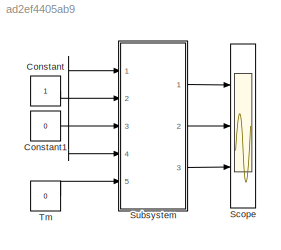
MODEL slx_ad2ef4405ab9
KIND model
BLOCK [Constant] Constant
BLOCK [Constant] Constant1
  Value = 0
BLOCK [Scope] Scope
  DataFormat = StructureWithTime
  Floating = off
  LimitDataPoints = off
  NumInputPorts = 3
  Ports = [3]
  SampleTime = 0
  ShowLegends = off
  YMax = -1.9975e+09~5~5
  YMin = -2.03e+09~-5~-5
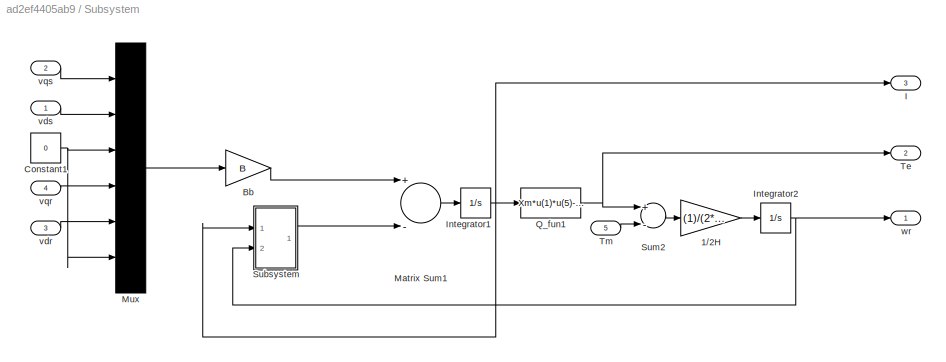
BLOCK [SubSystem] Subsystem
  FunctionWithSeparateData = off
  MaskHideContents = off
  MinAlgLoopOccurrences = off
  Opaque = off
  Ports = [5, 3]
  PropExecContextOutsideSubsystem = off
  RTWSystemCode = Auto
  RequestExecContextInheritance = off
BLOCK [Gain] Subsystem/1//2H
  Gain = (1)/(2*H)
  OutDataTypeStr = Inherit: Inherit via internal rule
  ParamDataTypeStr = Inherit: Inherit via internal rule
  SaturateOnIntegerOverflow = off
BLOCK [Gain] Subsystem/Bb
  Gain = B
  Multiplication = Matrix(K*u)
  OutDataTypeStr = Inherit: Inherit via internal rule
  ParamDataTypeStr = Inherit: Inherit via internal rule
  SaturateOnIntegerOverflow = off
BLOCK [Constant] Subsystem/Constant1
  Value = 0
BLOCK [Outport] Subsystem/I
  IconDisplay = Port number
  Port = 3
BLOCK [Integrator] Subsystem/Integrator1
  InitialCondition = [0; 0; 0; 0; 0; 0]
  Ports = [1, 1]
BLOCK [Integrator] Subsystem/Integrator2
  Ports = [1, 1]
BLOCK [Sum] Subsystem/Matrix Sum1
  InputSameDT = off
  Inputs = +-
  OutDataTypeStr = Inherit: Inherit via internal rule
  Ports = [2, 1]
  SaturateOnIntegerOverflow = off
BLOCK [Mux] Subsystem/Mux
  DisplayOption = bar
  Inputs = 6
  Ports = [6, 1]
BLOCK [Fcn] Subsystem/Q_fun1
  Expr = Xm*u(1)*u(5)-Xm*u(2)*u(4)
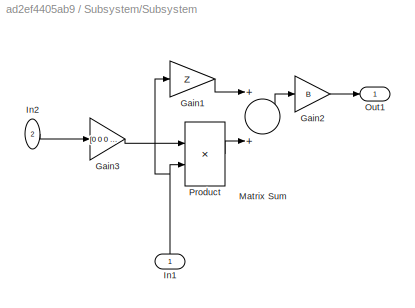
BLOCK [SubSystem] Subsystem/Subsystem
  FunctionWithSeparateData = off
  MaskHideContents = off
  MinAlgLoopOccurrences = off
  Opaque = off
  Ports = [2, 1]
  PropExecContextOutsideSubsystem = off
  RTWSystemCode = Auto
  RequestExecContextInheritance = off
BLOCK [Gain] Subsystem/Subsystem/Gain1
  Gain = Z
  Multiplication = Matrix(K*u)
  OutDataTypeStr = Inherit: Inherit via internal rule
  ParamDataTypeStr = Inherit: Inherit via internal rule
  SaturateOnIntegerOverflow = off
BLOCK [Gain] Subsystem/Subsystem/Gain2
  Gain = B
  Multiplication = Matrix(K*u)
  OutDataTypeStr = Inherit: Inherit via internal rule
  ParamDataTypeStr = Inherit: Inherit via internal rule
  SaturateOnIntegerOverflow = off
BLOCK [Gain] Subsystem/Subsystem/Gain3
  Gain = [0 0 0 0 0 0;0 0 0 0 0 0;0 0 0 0 0 0;0 -Xm 0 0 -Xr 0;Xm 0 0 Xr 0 0;0 0 0 0 0 0]
  OutDataTypeStr = Inherit: Inherit via internal rule
  ParamDataTypeStr = Inherit: Inherit via internal rule
  SaturateOnIntegerOverflow = off
BLOCK [Inport] Subsystem/Subsystem/In1
  IconDisplay = Port number
BLOCK [Inport] Subsystem/Subsystem/In2
  IconDisplay = Port number
  Port = 2
BLOCK [Sum] Subsystem/Subsystem/Matrix Sum
  InputSameDT = off
  OutDataTypeStr = Inherit: Inherit via internal rule
  Ports = [2, 1]
  SaturateOnIntegerOverflow = off
BLOCK [Outport] Subsystem/Subsystem/Out1
  IconDisplay = Port number
BLOCK [Product] Subsystem/Subsystem/Product
  InputSameDT = off
  Multiplication = Matrix(*)
  OutDataTypeStr = Inherit: Inherit via internal rule
  Ports = [2, 1]
  RndMeth = Floor
  SaturateOnIntegerOverflow = off
BLOCK [Sum] Subsystem/Sum2
  Inputs = +-
  Ports = [2, 1]
BLOCK [Outport] Subsystem/Te
  IconDisplay = Port number
  Port = 2
BLOCK [Inport] Subsystem/Tm
  IconDisplay = Port number
  Port = 5
BLOCK [Inport] Subsystem/vdr
  IconDisplay = Port number
  Port = 3
BLOCK [Inport] Subsystem/vds
  IconDisplay = Port number
BLOCK [Inport] Subsystem/vqr
  IconDisplay = Port number
  Port = 4
BLOCK [Inport] Subsystem/vqs
  IconDisplay = Port number
  Port = 2
BLOCK [Outport] Subsystem/wr
  IconDisplay = Port number
BLOCK [Constant] Tm
  Value = 0
NET Constant1:1 -> Subsystem:1, Subsystem:3, Subsystem:4
LINE Constant:1 -> Subsystem:2
LINE Subsystem/1//2H:1 -> Subsystem/Integrator2:1
LINE Subsystem/Bb:1 -> Subsystem/Matrix Sum1:1
NET Subsystem/Constant1:1 -> Subsystem/Mux:3, Subsystem/Mux:6
NET Subsystem/Integrator1:1 -> Subsystem/I:1, Subsystem/Q_fun1:1, Subsystem/Subsystem:1
NET Subsystem/Integrator2:1 -> Subsystem/Subsystem:2, Subsystem/wr:1
LINE Subsystem/Matrix Sum1:1 -> Subsystem/Integrator1:1
LINE Subsystem/Mux:1 -> Subsystem/Bb:1
NET Subsystem/Q_fun1:1 -> Subsystem/Sum2:1, Subsystem/Te:1
LINE Subsystem/Subsystem/Gain1:1 -> Subsystem/Subsystem/Matrix Sum:1
LINE Subsystem/Subsystem/Gain2:1 -> Subsystem/Subsystem/Out1:1
LINE Subsystem/Subsystem/Gain3:1 -> Subsystem/Subsystem/Product:1
NET Subsystem/Subsystem/In1:1 -> Subsystem/Subsystem/Gain1:1, Subsystem/Subsystem/Product:2
LINE Subsystem/Subsystem/In2:1 -> Subsystem/Subsystem/Gain3:1
LINE Subsystem/Subsystem/Matrix Sum:1 -> Subsystem/Subsystem/Gain2:1
LINE Subsystem/Subsystem/Product:1 -> Subsystem/Subsystem/Matrix Sum:2
LINE Subsystem/Subsystem:1 -> Subsystem/Matrix Sum1:2
LINE Subsystem/Sum2:1 -> Subsystem/1//2H:1
LINE Subsystem/Tm:1 -> Subsystem/Sum2:2
LINE Subsystem/vdr:1 -> Subsystem/Mux:5
LINE Subsystem/vds:1 -> Subsystem/Mux:2
LINE Subsystem/vqr:1 -> Subsystem/Mux:4
LINE Subsystem/vqs:1 -> Subsystem/Mux:1
LINE Subsystem:1 -> Scope:1
LINE Subsystem:2 -> Scope:2
LINE Subsystem:3 -> Scope:3
LINE Tm:1 -> Subsystem:5
note: NET lines group one-source signal fan-out (src -> all destinations, sorted); 1:1 wires keep LINE
